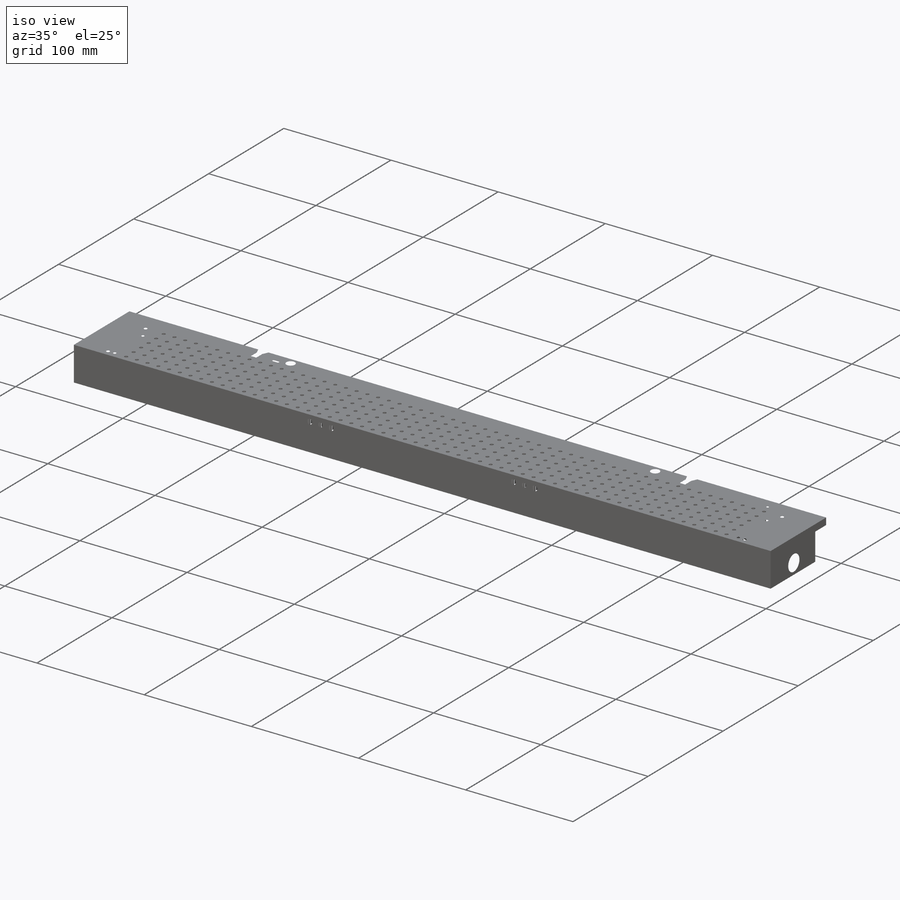
[diagram: iso view]
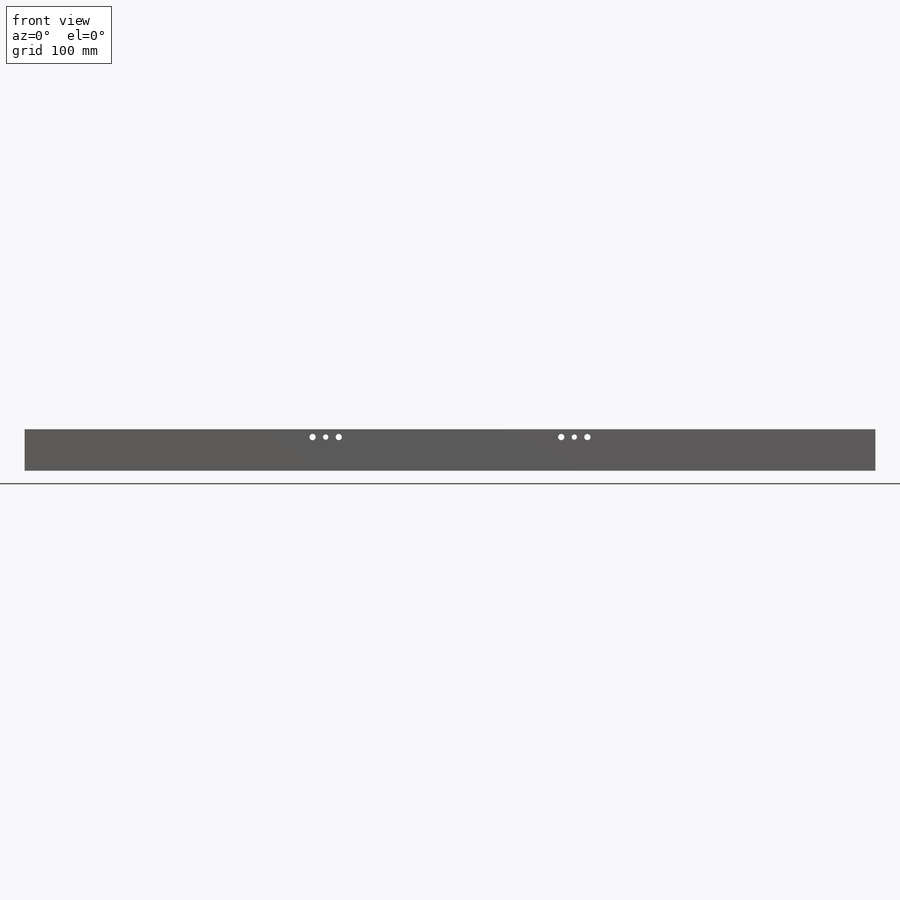
[diagram: front view]
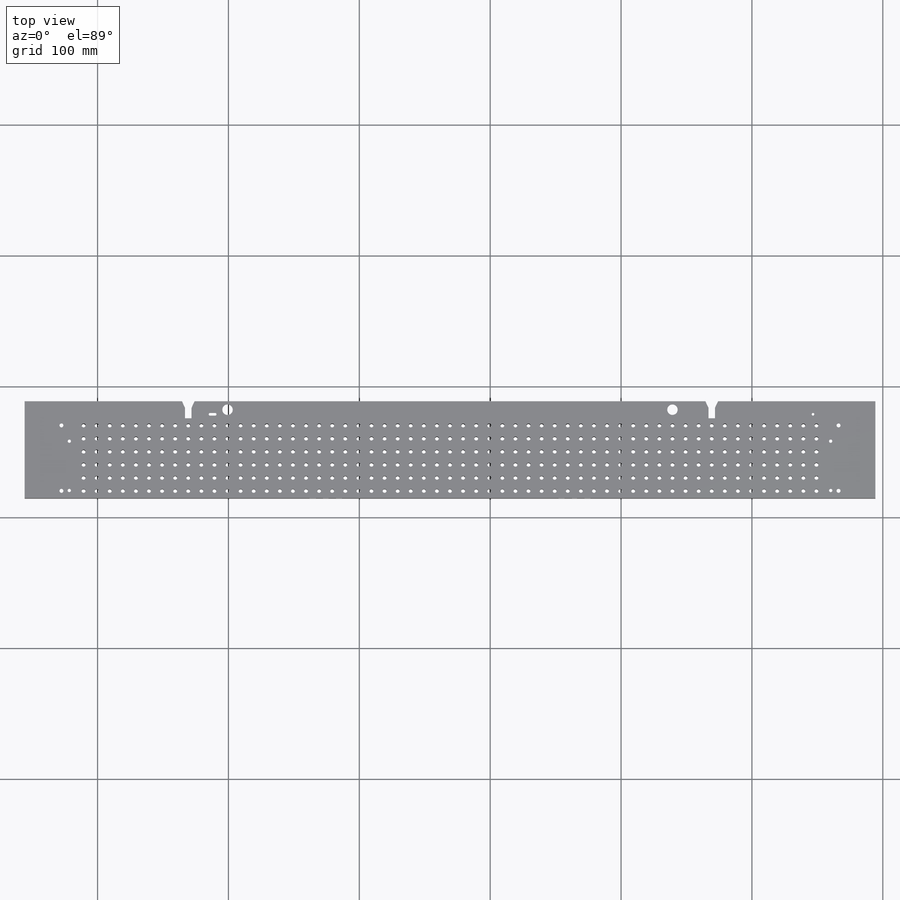
[diagram: top view]
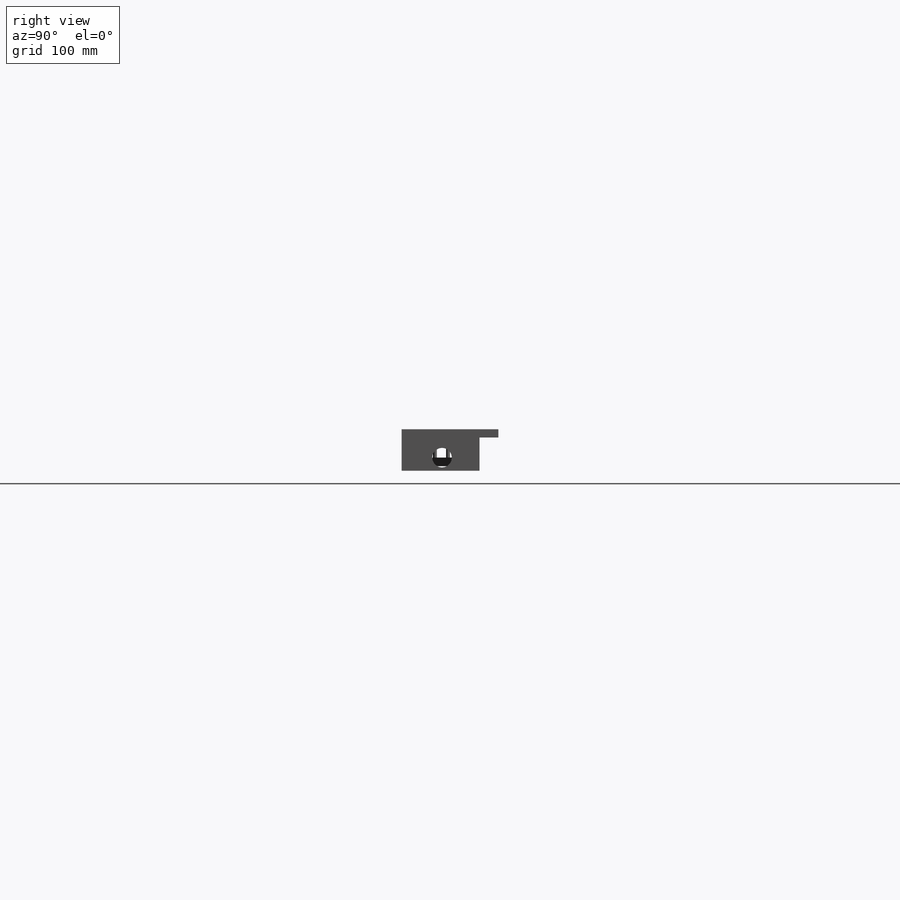
[diagram: right view]
SOLIDWORKS PART (.sldprt)
format: sldprt  version: not decoded by parser v0  size: 1,432,576 bytes
history: native  units: mm
features: sketch x31, hole x9, cut_extrude x9, thread x6, chamfer x4, pattern_linear x2, material x1, extrude x1, fillet x1 (+11 scaffold rows collapsed)
feature tree (75):
  scaffold x11  (default folders/planes/origin — collapsed)
  material  "Material <not specified>"
  sketch  "Sketch1"  dims[c1.D1=~81.220909mm c1.D2=~154.046892mm c2.D1=650.0mm c2.D2=114.3mm]
  extrude  "Boss-Extrude1"  Depth=31.75mm
  hole  "Hole2"  Diameter=7.9629mm Depth=15.875mm
  sketch  "Sketch5"  dims[D1=155.0mm D2=340.0mm D3=67.5mm D4=67.5mm]
  sketch  "Sketch4"  dims[Diameter=7.9629mm Depth=15.875mm]
  hole  "Hole4"  Diameter=5mm Depth=15.875mm
  sketch  "Sketch12"  dims[c1.D1=200.0mm c1.D2=200.0mm c1.D3=63.5mm c1.D4=63.5mm c2.D1=200.0mm c2.D2=200.0mm]
  sketch  "Sketch11"  dims[Diameter=5.0mm Depth=15.875mm]
  hole  "Hole6"  Diameter=3mm Depth=5mm
  sketch  "Sketch16"  dims[c1.D1=7.9629mm c1.D2=7.9629mm c1.D3=7.9629mm c2.D1=296.9mm c2.D2=296.9mm c2.D3=296.9mm c2.D4=296.9mm c2.D5=5.5mm c2.D6=5.5mm c2.D7=50.0mm c2.D8=50.0mm c3.D1=296.9mm c3.D2=296.9mm c3.D3=325.0mm c3.D4=325.0mm c4.D3=55.5mm]
  sketch  "Sketch15"  dims[Diameter=3.0mm Depth=5.0mm]
  hole  "Hole7"  Diameter=3mm Depth=30mm
  sketch  "Sketch18"  dims[c1.D2=7.9629mm c1.D1=5.5mm c2.D2=10.0mm]
  sketch  "Sketch17"  dims[Diameter=3.0mm Depth=30.0mm]
  sketch  "Sketch19"  dims[D1=10.0mm]
  pattern_linear  "LPattern2"  Count1=28 Count2=6 Spacing1=10mm Spacing2=10mm
  hole  "Hole12"  Diameter=3mm Depth=30mm
  sketch  "Sketch34"
  sketch  "Sketch33"  dims[Diameter=3.0mm Depth=30.0mm]
  pattern_linear  "LPattern3"  Count1=29 Count2=6 Spacing1=10mm Spacing2=10mm
  sketch  "Sketch35"  dims[D1=325.0mm]
  hole  "Hole13"  Diameter=4.7625mm Depth=12mm
  sketch  "Sketch37"  dims[D1=105.0mm D2=85.0mm D3=105.0mm D4=85.0mm D5=6.0mm D6=6.0mm D7=6.0mm D8=6.0mm]
  sketch  "Sketch36"  dims[Diameter=4.7625mm Depth=12.0mm]
  hole  "#10-32 Tapped Hole1"  Diameter=4.0386mm Depth=15.24mm
  sketch  "Sketch40"  dims[D1=95.0mm D2=95.0mm D3=6.0mm D4=6.0mm]
  sketch  "Sketch38"  dims[hole-wizard template sketch: 47 standard entries collapsed; hole parameters kept: c15.Tap Drill Depth=15.24mm c15.D3=~14.816244mm c15.Drill Angle=118.0deg]
  thread  "Hole Thread1"  Diameter=12.7mm  [1 undecoded]
  thread  "Hole Thread2"  Diameter=12.7mm  [1 undecoded]
  sketch  "Sketch41"  dims[c1.D1=~84.69569mm c1.D2=~599.384885mm c2.D1=4.5mm c2.D2=55.0mm c2.D3=40.0mm c2.D4=40.0mm]
  sketch  "Sketch51"  dims[c1.D1=31.75mm c1.D2=~40.154099mm c2.D1=40.3mm]
  cut_extrude  "Cut-Extrude8"  Depth=40000mm
  sketch  "Sketch52"  dims[c1.D1=~26.555946mm c1.D2=~11.299942mm c2.D1=10.0mm c2.D2=25.4mm]
  cut_extrude  "Cut-Extrude9"  Depth=40000mm
  sketch  "Sketch55"  dims[c1.D1=25.4mm c1.D2=~4.320166mm c2.D1=3.5mm]
  cut_extrude  "Cut-Extrude10"  Depth=40000mm
  sketch  "Sketch56"  dims[c1.D1=~24.596559mm c1.D2=~2.824122mm c2.D1=25.4mm c2.D2=1.0mm]
  cut_extrude  "Cut-Extrude11"  Depth=40000mm
  sketch  "Sketch57"  dims[c1.D1=~5.754684mm c1.D2=~5.607136mm c2.D1=~50.78072mm c2.D2=570.0mm]
  cut_extrude  "Cut-Extrude12"  Depth=10mm
  sketch  "Sketch58"  dims[c1.D1=~56.219936mm c1.D2=576.0mm c2.D1=3.0mm]
  cut_extrude  "Cut-Extrude13"  Depth=3.5mm
  fillet  "Fillet1"  Radius=3.18mm
  sketch  "Sketch60"  dims[D1=13.0mm D2=5.0mm]
  cut_extrude  "Cut-Extrude17"  Depth=10mm
  sketch  "Sketch61"  dims[c1.D2=5.0mm c1.D1=~12.808547mm c2.D2=~4.909413mm c2.D1=~1.830653mm c3.D2=~12.837538mm c3.D1=2.5mm c4.D2=2.5mm c4.D3=5.0mm]
  cut_extrude  "Cut-Extrude18"  Depth=10mm
  chamfer  "Chamfer3"  Distance=5mm Angle=25deg
  chamfer  "Chamfer4"  Distance=5mm Angle=25deg
  chamfer  "Chamfer5"  Distance=5mm Angle=25deg
  chamfer  "Chamfer6"  Distance=5mm Angle=25deg
  hole  "1/4 NPT Tapped Hole1"  Diameter=11.1252mm Depth=47.07mm
  sketch  "Sketch65"  dims[D1=10.0mm]
  sketch  "Sketch64"  dims[hole-wizard template sketch: 39 standard entries collapsed; hole parameters kept: c10.Tap Drill Dia.=11.1252mm c10.Tap Drill Depth=47.07mm c10.Thread Dia.=~13.715975mm c10.D4=~21.335028mm c10.Thread Angle=3.43deg c10.Thread Depth=10.02mm c10.C'Sink Dia.=~14.985975mm c10.D7=~2.053058mm c10.C'Sink Angle=60.0deg c10.D8=~21.878095mm c10.Drill Angle=118.0deg]
  sketch  "Sketch67"  dims[c1.D1=2.0mm c1.D3=~4.609489mm c2.D1=64.0mm c2.D2=277.4mm c2.D3=181.4mm]
  cut_extrude  "Cut-Extrude19"  Depth=5mm
  hole  "M3x0.5 Tapped Hole2"  Diameter=2.5mm Depth=10mm
  sketch  "Sketch73"  dims[c1.D1=290.9mm c1.D2=6.18mm c1.D3=43.85mm c2.D2=5.772mm c2.D3=43.447mm c2.D4=290.9mm c2.D5=5.772mm c2.D6=43.447mm]
  sketch  "Sketch72"  dims[hole-wizard template sketch: 47 standard entries collapsed; hole parameters kept: c15.Tap Drill Depth=10.0mm c15.D3=~14.816244mm c15.Drill Angle=118.0deg]
  thread  "Hole Thread4"  Diameter=6mm  [1 undecoded]
  thread  "Hole Thread5"  Diameter=6mm  [1 undecoded]
  thread  "Hole Thread6"  Diameter=6mm  [1 undecoded]
  thread  "Hole Thread7"  Diameter=6mm  [1 undecoded]
decode coverage: 62 of 63 modeling features carry decoded parameters
note: ~ marks probable driven/reference dimensions
note: 6 parameter values undecoded
summary: Diameter pulled from absorbed wizard sketch
note: suppression state not decoded; provenance and decode notes live in map.json
